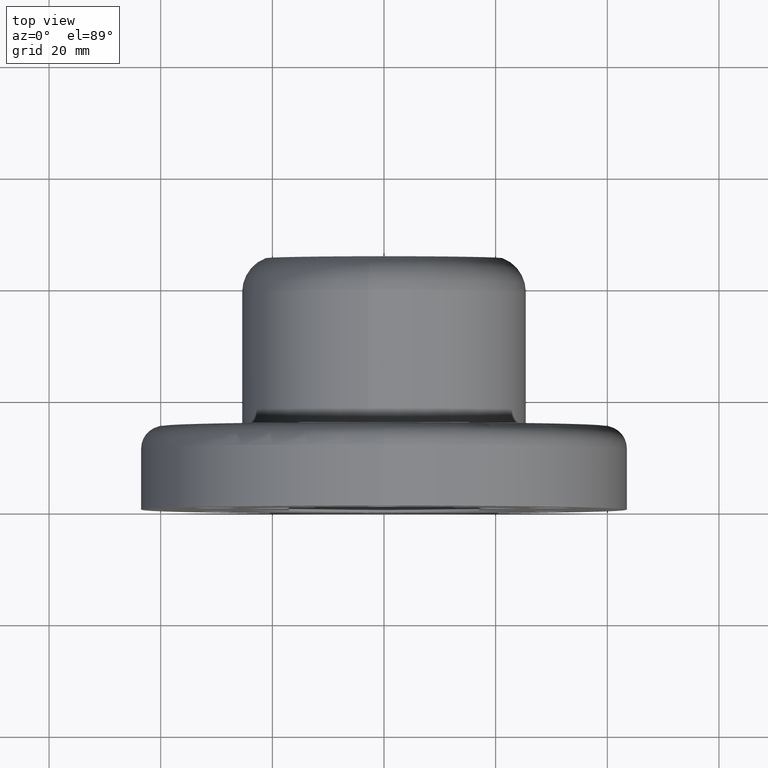
[diagram: clean part render]
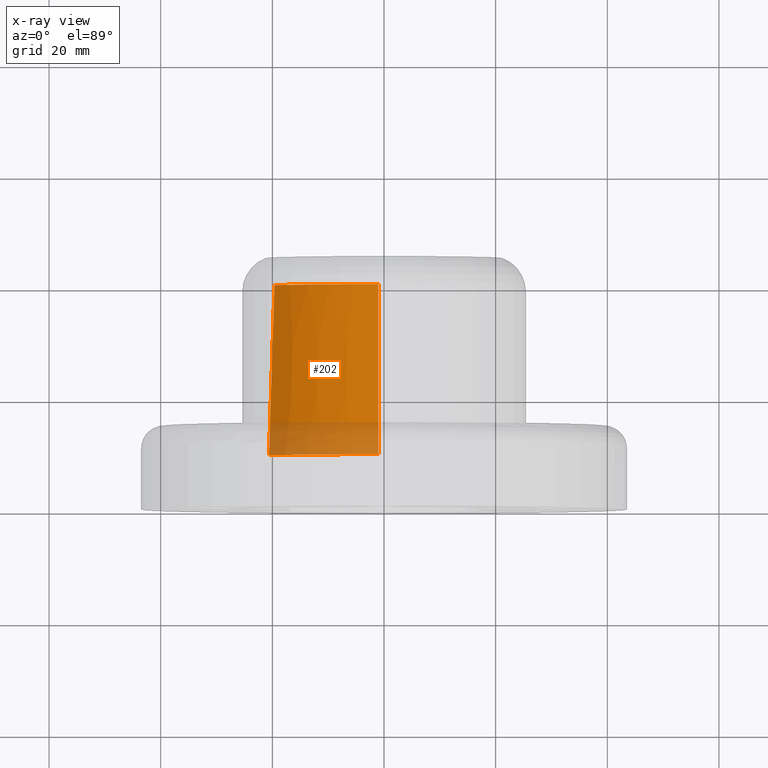
[diagram: x-ray — body ghosted, one internal face saturated and labeled with its STEP entity id]
A machine part, top view, then the same camera in x-ray: the body is ghosted and one INTERNAL B-rep face — a face not visible from any outside direction — is saturated and labeled: STEP entity #202.
In plain terms, the highlighted conical surface has half-angle 2.159 deg.
Its self-contained STEP definition (entity closure, byte-faithful):
#28 = ORIENTED_EDGE ( 'NONE', *, *, #2088, .F. ) ;
#96 = EDGE_LOOP ( 'NONE', ( #2010, #2493, #28, #1649 ) ) ;
#125 = CARTESIAN_POINT ( 'NONE',  ( -19.94874169097510100, 29.83333396479926600, 12.67211192365975800 ) ) ;
#202 = ADVANCED_FACE ( 'NONE', ( #3073 ), #1674, .T. ) ;
#337 = AXIS2_PLACEMENT_3D ( 'NONE', #2532, #2507, #1743 ) ;
#341 = CARTESIAN_POINT ( 'NONE',  ( -20.61326597189467300, 9.499999999999989300, 13.05577519613172100 ) ) ;
#426 = CARTESIAN_POINT ( 'NONE',  ( -0.9999999999979756200, 9.499999999999998200, 24.37949958469212300 ) ) ;
#717 = CARTESIAN_POINT ( 'NONE',  ( -0.9999999999979838300, 40.00000000000001400, 23.22848466861331900 ) ) ;
#849 = B_SPLINE_CURVE_WITH_KNOTS ( 'NONE', 3,
 ( #2173, #2989, #2148, #3223, #1356, #1636, #898 ),
 .UNSPECIFIED., .F., .F.,
 ( 4, 3, 4 ),
 ( 0.02015069954709910700, 0.04674269349606799400, 0.05067241043190370800 ),
 .UNSPECIFIED. ) ;
#895 = EDGE_CURVE ( 'NONE', #2204, #1650, #2348, .T. ) ;
#898 = CARTESIAN_POINT ( 'NONE',  ( -0.9999999999979756200, 9.499999999999998200, 24.37949958469212300 ) ) ;
#1204 = EDGE_CURVE ( 'NONE', #1548, #1650, #2419, .T. ) ;
#1356 = CARTESIAN_POINT ( 'NONE',  ( -0.9999999999979731800, 12.11794789624239700, 24.28070681811123400 ) ) ;
#1508 = CARTESIAN_POINT ( 'NONE',  ( -3.081487911019577400E-030, 40.00000000000001400, 0.0000000000000000000 ) ) ;
#1548 = VERTEX_POINT ( 'NONE', #341 ) ;
#1568 = DIRECTION ( 'NONE',  ( 3.802133645976562900E-016, -1.000000000000000000, -0.0000000000000000000 ) ) ;
#1589 = AXIS2_PLACEMENT_3D ( 'NONE', #3157, #1568, #2636 ) ;
#1590 = DIRECTION ( 'NONE',  ( 1.000000000000000000, 2.984470496304184100E-016, 0.0000000000000000000 ) ) ;
#1636 = CARTESIAN_POINT ( 'NONE',  ( -0.9999999999979725100, 10.80897395287206400, 24.33010332729730500 ) ) ;
#1649 = ORIENTED_EDGE ( 'NONE', *, *, #895, .T. ) ;
#1650 = VERTEX_POINT ( 'NONE', #2494 ) ;
#1674 = CONICAL_SURFACE ( 'NONE', #1589, 24.39999999999998800, 0.03768706539002657200 ) ;
#1743 = DIRECTION ( 'NONE',  ( 1.000000000000000000, 3.554761221263950500E-016, 0.0000000000000000000 ) ) ;
#2010 = ORIENTED_EDGE ( 'NONE', *, *, #1204, .F. ) ;
#2088 = EDGE_CURVE ( 'NONE', #2204, #2751, #849, .T. ) ;
#2148 = CARTESIAN_POINT ( 'NONE',  ( -0.9999999999979770600, 22.28461501557648800, 23.89704717450971600 ) ) ;
#2173 = CARTESIAN_POINT ( 'NONE',  ( -0.9999999999979838300, 40.00000000000001400, 23.22848466861331900 ) ) ;
#2204 = VERTEX_POINT ( 'NONE', #717 ) ;
#2239 = CARTESIAN_POINT ( 'NONE',  ( -20.61326597189467300, 9.499999999999989300, 13.05577519613172100 ) ) ;
#2348 = CIRCLE ( 'NONE', #3462, 23.25000000000000000 ) ;
#2419 = B_SPLINE_CURVE_WITH_KNOTS ( 'NONE', 3,
 ( #2239, #3353, #125, #2530 ),
 .UNSPECIFIED., .F., .F.,
 ( 4, 4 ),
 ( 2.001423545966572400E-007, 0.03052191102718274400 ),
 .UNSPECIFIED. ) ;
#2493 = ORIENTED_EDGE ( 'NONE', *, *, #2657, .F. ) ;
#2494 = CARTESIAN_POINT ( 'NONE',  ( -19.61645781443562300, 40.00000000000000700, 12.48026773809231400 ) ) ;
#2507 = DIRECTION ( 'NONE',  ( 3.802133645976562900E-016, -1.000000000000000000, -0.0000000000000000000 ) ) ;
#2530 = CARTESIAN_POINT ( 'NONE',  ( -19.61645781443562300, 40.00000000000000700, 12.48026773809231400 ) ) ;
#2532 = CARTESIAN_POINT ( 'NONE',  ( 1.159650762022852000E-014, 9.499999999999998200, 0.0000000000000000000 ) ) ;
#2549 = CIRCLE ( 'NONE', #337, 24.39999999999998800 ) ;
#2636 = DIRECTION ( 'NONE',  ( 1.000000000000000000, 3.554761221263950500E-016, 0.0000000000000000000 ) ) ;
#2657 = EDGE_CURVE ( 'NONE', #2751, #1548, #2549, .T. ) ;
#2751 = VERTEX_POINT ( 'NONE', #426 ) ;
#2989 = CARTESIAN_POINT ( 'NONE',  ( -0.9999999999979803900, 31.14230775890727200, 23.56277257540910200 ) ) ;
#3073 = FACE_OUTER_BOUND ( 'NONE', #96, .T. ) ;
#3157 = CARTESIAN_POINT ( 'NONE',  ( 1.159650762022852000E-014, 9.499999999999998200, 0.0000000000000000000 ) ) ;
#3223 = CARTESIAN_POINT ( 'NONE',  ( -0.9999999999979736200, 13.42692182993545600, 24.23131005248591700 ) ) ;
#3353 = CARTESIAN_POINT ( 'NONE',  ( -20.28101039265550300, 19.66666726829401700, 12.86394734801822700 ) ) ;
#3445 = DIRECTION ( 'NONE',  ( 3.802133645976562900E-016, -1.000000000000000000, -0.0000000000000000000 ) ) ;
#3462 = AXIS2_PLACEMENT_3D ( 'NONE', #1508, #3445, #1590 ) ;